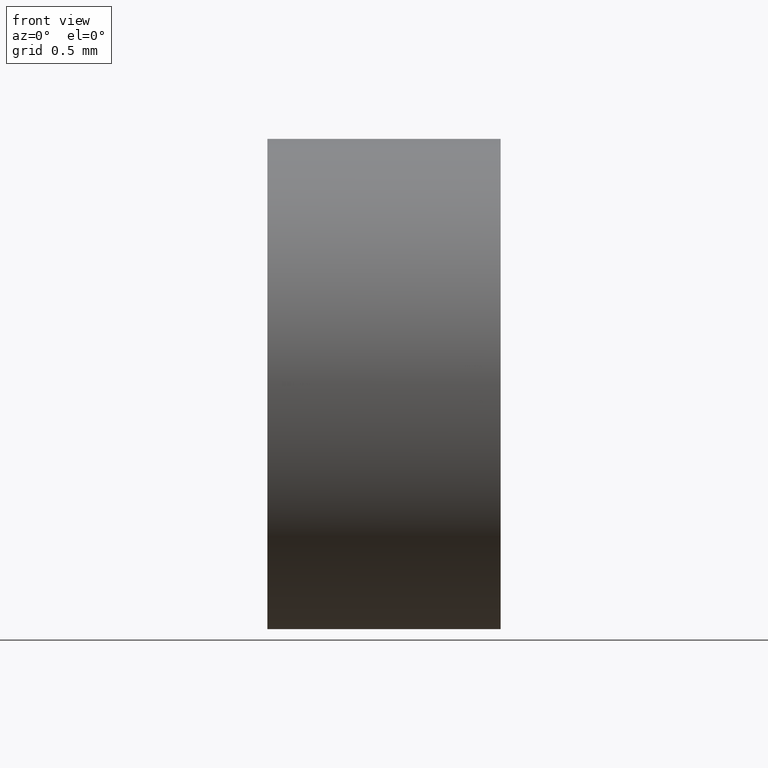
[diagram: clean part render]
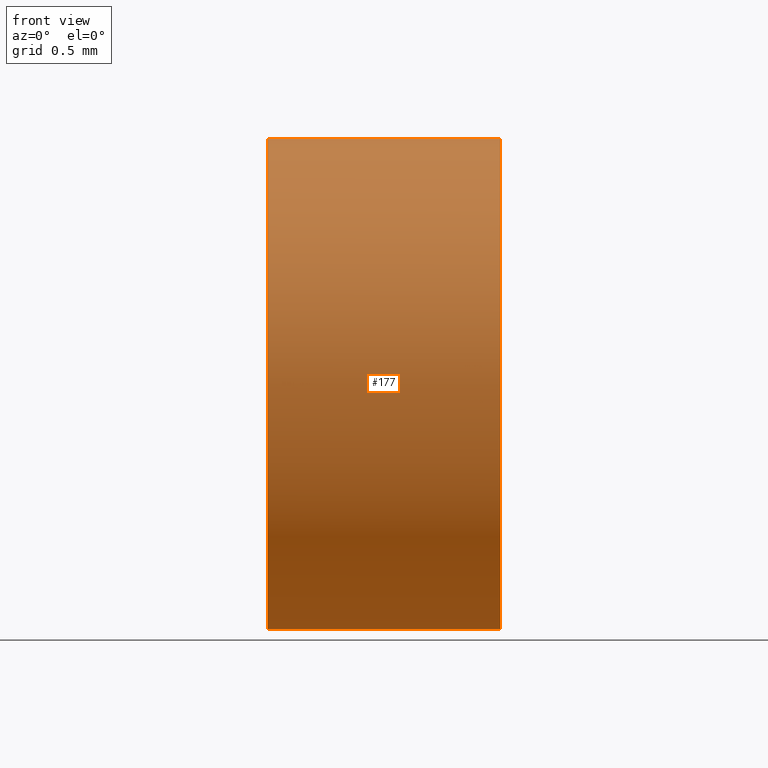
[diagram: same view with one face highlighted and labeled with its STEP entity id]
A machine part, front view. The second image highlights one B-rep face of the part: STEP entity #177.
In plain terms, the highlighted cylindrical surface (partial cylindrical patch) has radius 2 mm, axis along (-1, -0, -0).
Its self-contained STEP definition (entity closure, byte-faithful):
#2 = LINE ( 'NONE', #148, #164 ) ;
#3 = CIRCLE ( 'NONE', #144, 2.000000000000000900 ) ;
#8 = CARTESIAN_POINT ( 'NONE',  ( 13.05950626288892900, 6.515563045701520100, -2.000000000000000900 ) ) ;
#12 = CARTESIAN_POINT ( 'NONE',  ( 13.05950626288892900, 6.515563045701520100, 0.0000000000000000000 ) ) ;
#30 = ORIENTED_EDGE ( 'NONE', *, *, #79, .T. ) ;
#39 = FACE_OUTER_BOUND ( 'NONE', #105, .T. ) ;
#40 = LINE ( 'NONE', #119, #130 ) ;
#42 = ORIENTED_EDGE ( 'NONE', *, *, #111, .F. ) ;
#43 = DIRECTION ( 'NONE',  ( 0.0000000000000000000, 0.0000000000000000000, 1.000000000000000000 ) ) ;
#45 = CARTESIAN_POINT ( 'NONE',  ( 11.15698987586548600, 6.515563045701520100, 2.000000000000000900 ) ) ;
#50 = EDGE_CURVE ( 'NONE', #161, #176, #102, .T. ) ;
#58 = ORIENTED_EDGE ( 'NONE', *, *, #178, .T. ) ;
#59 = CARTESIAN_POINT ( 'NONE',  ( 11.15698987586548600, 6.515563045701520100, 0.0000000000000000000 ) ) ;
#64 = CIRCLE ( 'NONE', #121, 2.000000000000000900 ) ;
#75 = DIRECTION ( 'NONE',  ( 0.0000000000000000000, 0.0000000000000000000, 1.000000000000000000 ) ) ;
#79 = EDGE_CURVE ( 'NONE', #166, #118, #40, .T. ) ;
#91 = CARTESIAN_POINT ( 'NONE',  ( 13.05950626288892900, 6.515563045701520100, 0.0000000000000000000 ) ) ;
#96 = EDGE_CURVE ( 'NONE', #161, #123, #2, .T. ) ;
#101 = CARTESIAN_POINT ( 'NONE',  ( 10.34201531756644400, 6.515563045701520100, 0.0000000000000000000 ) ) ;
#102 = CIRCLE ( 'NONE', #115, 2.000000000000000900 ) ;
#103 = ORIENTED_EDGE ( 'NONE', *, *, #50, .T. ) ;
#105 = EDGE_LOOP ( 'NONE', ( #107, #103, #58, #30, #42 ) ) ;
#107 = ORIENTED_EDGE ( 'NONE', *, *, #96, .F. ) ;
#109 = AXIS2_PLACEMENT_3D ( 'NONE', #101, #125, #43 ) ;
#111 = EDGE_CURVE ( 'NONE', #123, #118, #64, .T. ) ;
#115 = AXIS2_PLACEMENT_3D ( 'NONE', #91, #120, #149 ) ;
#118 = VERTEX_POINT ( 'NONE', #45 ) ;
#119 = CARTESIAN_POINT ( 'NONE',  ( 10.34201531756644400, 6.515563045701520100, 2.000000000000000900 ) ) ;
#120 = DIRECTION ( 'NONE',  ( -1.000000000000000000, -0.0000000000000000000, -0.0000000000000000000 ) ) ;
#121 = AXIS2_PLACEMENT_3D ( 'NONE', #59, #154, #127 ) ;
#123 = VERTEX_POINT ( 'NONE', #128 ) ;
#125 = DIRECTION ( 'NONE',  ( -1.000000000000000000, -0.0000000000000000000, -0.0000000000000000000 ) ) ;
#127 = DIRECTION ( 'NONE',  ( 0.0000000000000000000, 0.0000000000000000000, 1.000000000000000000 ) ) ;
#128 = CARTESIAN_POINT ( 'NONE',  ( 11.15698987586548600, 6.515563045701520100, -2.000000000000000900 ) ) ;
#129 = DIRECTION ( 'NONE',  ( -1.000000000000000000, -0.0000000000000000000, -0.0000000000000000000 ) ) ;
#130 = VECTOR ( 'NONE', #131, 1000.000000000000000 ) ;
#131 = DIRECTION ( 'NONE',  ( -1.000000000000000000, -0.0000000000000000000, -0.0000000000000000000 ) ) ;
#132 = DIRECTION ( 'NONE',  ( -1.000000000000000000, -0.0000000000000000000, -0.0000000000000000000 ) ) ;
#142 = CYLINDRICAL_SURFACE ( 'NONE', #109, 2.000000000000000900 ) ;
#144 = AXIS2_PLACEMENT_3D ( 'NONE', #12, #129, #75 ) ;
#148 = CARTESIAN_POINT ( 'NONE',  ( 10.34201531756644400, 6.515563045701520100, -2.000000000000000900 ) ) ;
#149 = DIRECTION ( 'NONE',  ( 0.0000000000000000000, 0.0000000000000000000, 1.000000000000000000 ) ) ;
#154 = DIRECTION ( 'NONE',  ( -1.000000000000000000, -0.0000000000000000000, -0.0000000000000000000 ) ) ;
#161 = VERTEX_POINT ( 'NONE', #8 ) ;
#164 = VECTOR ( 'NONE', #132, 1000.000000000000000 ) ;
#165 = CARTESIAN_POINT ( 'NONE',  ( 13.05950626288892900, 4.515563045701518300, 0.0000000000000000000 ) ) ;
#166 = VERTEX_POINT ( 'NONE', #183 ) ;
#176 = VERTEX_POINT ( 'NONE', #165 ) ;
#177 = ADVANCED_FACE ( 'NONE', ( #39 ), #142, .T. ) ;
#178 = EDGE_CURVE ( 'NONE', #176, #166, #3, .T. ) ;
#183 = CARTESIAN_POINT ( 'NONE',  ( 13.05950626288892900, 6.515563045701520100, 2.000000000000000900 ) ) ;